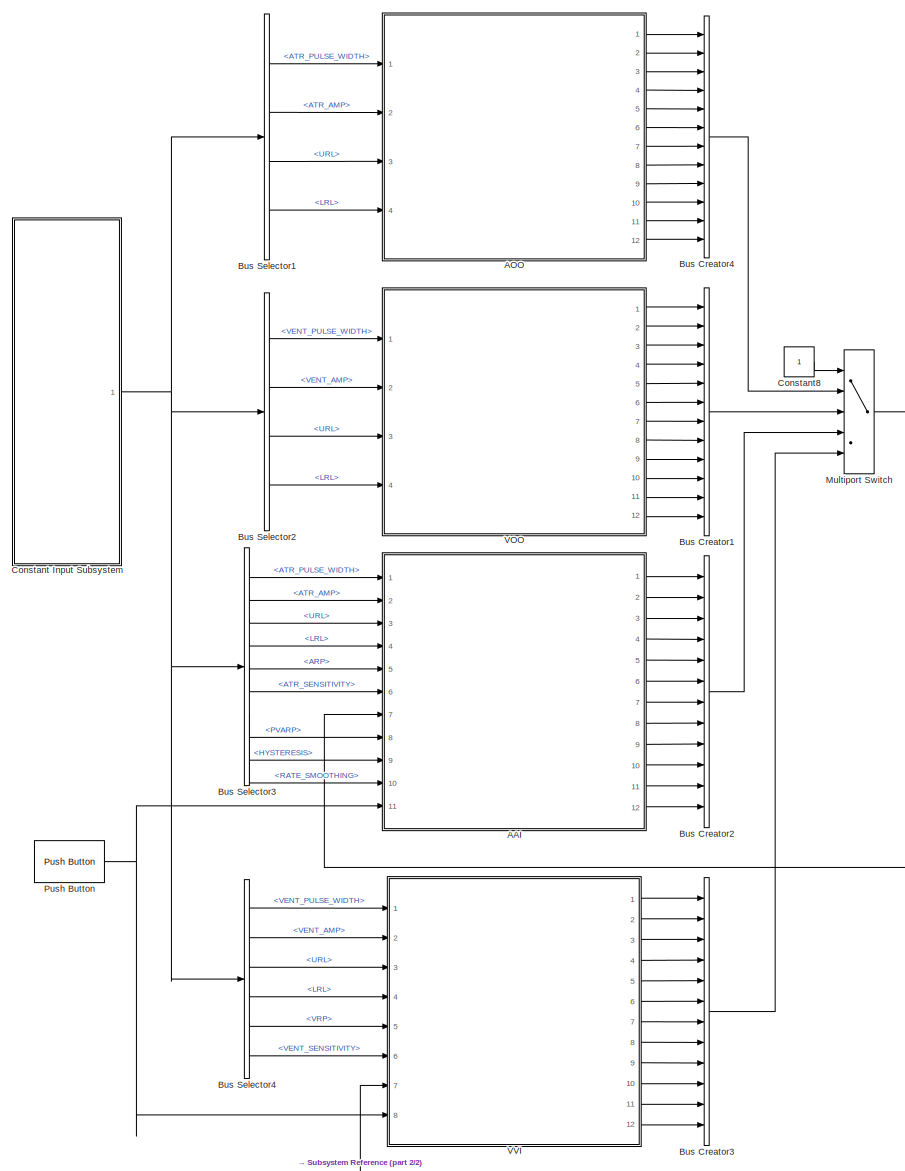
[diagram: root canvas - part 1/2, center side, full height]
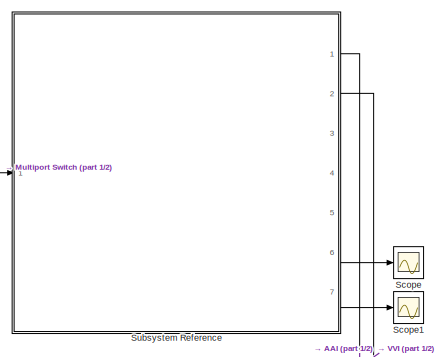
[diagram: root canvas - part 2/2, middle right region]
MODEL slx_96af87fd9442
KIND model
CONFIG AbsTol = auto
CONFIG EnableMultiTasking = on
CONFIG FixedStep = 1e-3
CONFIG MaxStep = auto
CONFIG MinStep = auto
CONFIG RelTol = 1e-3
CONFIG SampleTimeConstraint = Unconstrained
CONFIG Solver = FixedStepAuto
CONFIG SolverName = FixedStepAuto
CONFIG StartTime = 0.0
CONFIG StopTime = 10.0
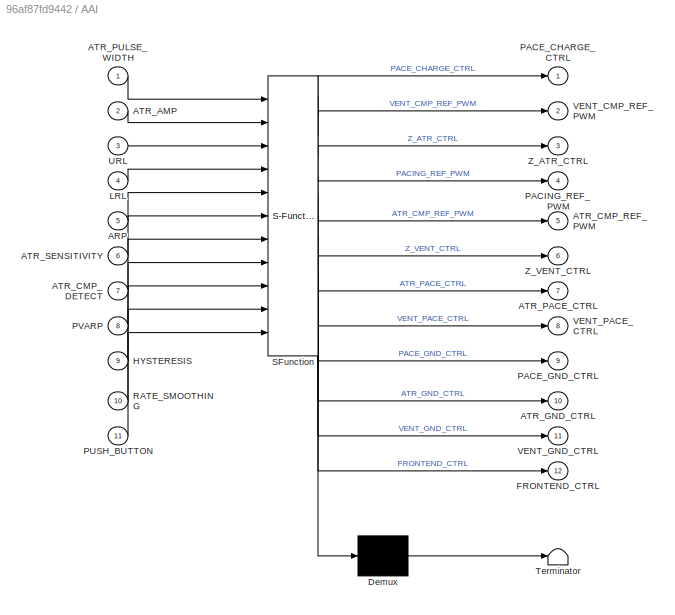
BLOCK [SubSystem] AAI
  Commented = on
  ErrorFcn = Stateflow.Translate.translate
  PermitHierarchicalResolution = ExplicitOnly
  PortSchema = {"entries":[{"content":{"sides":[{"content":{"connectorIds":["In1","In2","In3","In4","In6","In5","In8","In9","In10","In7","In11"]},"type":"ConnectorPlacement.EquallySpacedRectSide","uuid":"15e17ad8-b4d5-4618-94ec-328f447b5375"},{"content":{"connectorIds":["Out1","Out2","Out3","Out4","Out5","Out6","Out7","Out8","Out9","Out10","Out11","Out12"],"side":"RIGHT"},"type":"ConnectorPlacement.EquallySpaced...<+384ch>
  Ports = [11, 12]
  RequestExecContextInheritance = off
  SFBlockType = Chart
  TreatAsAtomicUnit = on
BLOCK [Demux] AAI/ Demux 
  Outputs = 1
  Ports = [1, 1]
BLOCK [S-Function] AAI/ SFunction 
  EnableBusSupport = on
  FunctionName = sf_sfun
  PortCounts = [11 13]
  Ports = [11, 13]
  SFcnIsStateOwnerBlock = off
  SFunctionDeploymentMode = off
  Tag = Stateflow S-Function 2
BLOCK [Terminator] AAI/ Terminator 
BLOCK [Inport] AAI/ARP
  Port = 5
BLOCK [Inport] AAI/ATR_AMP
  Port = 2
BLOCK [Inport] AAI/ATR_CMP_DETECT
  Port = 7
BLOCK [Outport] AAI/ATR_CMP_REF_PWM
  Port = 5
BLOCK [Outport] AAI/ATR_GND_CTRL
  Port = 10
BLOCK [Outport] AAI/ATR_PACE_CTRL
  Port = 7
BLOCK [Inport] AAI/ATR_PULSE_WIDTH
BLOCK [Inport] AAI/ATR_SENSITIVITY
  Port = 6
BLOCK [Outport] AAI/FRONTEND_CTRL
  Port = 12
BLOCK [Inport] AAI/HYSTERESIS
  Port = 9
BLOCK [Inport] AAI/LRL
  Port = 4
BLOCK [Outport] AAI/PACE_CHARGE_CTRL
BLOCK [Outport] AAI/PACE_GND_CTRL
  Port = 9
BLOCK [Outport] AAI/PACING_REF_PWM
  Port = 4
BLOCK [Inport] AAI/PUSH_BUTTON
  Port = 11
BLOCK [Inport] AAI/PVARP
  Port = 8
BLOCK [Inport] AAI/RATE_SMOOTHING
  Port = 10
BLOCK [Inport] AAI/URL
  Port = 3
BLOCK [Outport] AAI/VENT_CMP_REF_PWM
  Port = 2
BLOCK [Outport] AAI/VENT_GND_CTRL
  Port = 11
BLOCK [Outport] AAI/VENT_PACE_CTRL
  Port = 8
BLOCK [Outport] AAI/Z_ATR_CTRL
  Port = 3
BLOCK [Outport] AAI/Z_VENT_CTRL
  Port = 6
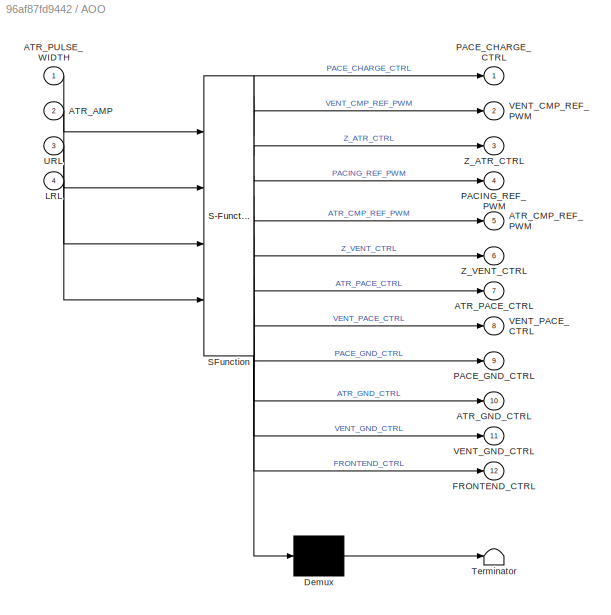
BLOCK [SubSystem] AOO
  ErrorFcn = Stateflow.Translate.translate
  PermitHierarchicalResolution = ExplicitOnly
  Ports = [4, 12]
  RequestExecContextInheritance = off
  SFBlockType = Chart
  TreatAsAtomicUnit = on
BLOCK [Demux] AOO/ Demux 
  Outputs = 1
  Ports = [1, 1]
BLOCK [S-Function] AOO/ SFunction 
  EnableBusSupport = on
  FunctionName = sf_sfun
  PortCounts = [4 13]
  Ports = [4, 13]
  SFcnIsStateOwnerBlock = off
  SFunctionDeploymentMode = off
  Tag = Stateflow S-Function 3
BLOCK [Terminator] AOO/ Terminator 
BLOCK [Inport] AOO/ATR_AMP
  Port = 2
BLOCK [Outport] AOO/ATR_CMP_REF_PWM
  Port = 5
BLOCK [Outport] AOO/ATR_GND_CTRL
  Port = 10
BLOCK [Outport] AOO/ATR_PACE_CTRL
  Port = 7
BLOCK [Inport] AOO/ATR_PULSE_WIDTH
BLOCK [Outport] AOO/FRONTEND_CTRL
  Port = 12
BLOCK [Inport] AOO/LRL
  Port = 4
BLOCK [Outport] AOO/PACE_CHARGE_CTRL
BLOCK [Outport] AOO/PACE_GND_CTRL
  Port = 9
BLOCK [Outport] AOO/PACING_REF_PWM
  Port = 4
BLOCK [Inport] AOO/URL
  Port = 3
BLOCK [Outport] AOO/VENT_CMP_REF_PWM
  Port = 2
BLOCK [Outport] AOO/VENT_GND_CTRL
  Port = 11
BLOCK [Outport] AOO/VENT_PACE_CTRL
  Port = 8
BLOCK [Outport] AOO/Z_ATR_CTRL
  Port = 3
BLOCK [Outport] AOO/Z_VENT_CTRL
  Port = 6
BLOCK [BusCreator] Bus Creator1
  DisplayOption = bar
  InheritFromInputs = on
  Inputs = PACE_CHARGE_CTRL,VENT_CMP_REF_PWM,Z_ATR_CTRL,PACING_REF_PWM,ATR_CMP_REF_PWM,Z_VENT_CTRL,ATR_PACE_CTRL,VENT_PACE_CTRL,PACE_GND_CTRL,ATR_GND_CTRL,VENT_GND_CTRL,FRONTEND_CTRL
  Ports = [12, 1]
BLOCK [BusCreator] Bus Creator2
  DisplayOption = bar
  InheritFromInputs = on
  Inputs = PACE_CHARGE_CTRL,VENT_CMP_REF_PWM,Z_ATR_CTRL,PACING_REF_PWM,ATR_CMP_REF_PWM,Z_VENT_CTRL,ATR_PACE_CTRL,VENT_PACE_CTRL,PACE_GND_CTRL,ATR_GND_CTRL,VENT_GND_CTRL,FRONTEND_CTRL
  Ports = [12, 1]
BLOCK [BusCreator] Bus Creator3
  DisplayOption = bar
  InheritFromInputs = on
  Inputs = PACE_CHARGE_CTRL,VENT_CMP_REF_PWM,Z_ATR_CTRL,PACING_REF_PWM,ATR_CMP_REF_PWM,Z_VENT_CTRL,ATR_PACE_CTRL,VENT_PACE_CTRL,PACE_GND_CTRL,ATR_GND_CTRL,VENT_GND_CTRL,FRONTEND_CTRL
  Ports = [12, 1]
BLOCK [BusCreator] Bus Creator4
  DisplayOption = bar
  InheritFromInputs = on
  Inputs = PACE_CHARGE_CTRL,VENT_CMP_REF_PWM,Z_ATR_CTRL,PACING_REF_PWM,ATR_CMP_REF_PWM,Z_VENT_CTRL,ATR_PACE_CTRL,VENT_PACE_CTRL,PACE_GND_CTRL,ATR_GND_CTRL,VENT_GND_CTRL,FRONTEND_CTRL
  Ports = [12, 1]
BLOCK [BusSelector] Bus Selector1
  OutputSignals = ATR_PULSE_WIDTH,ATR_AMP,URL,LRL
  Ports = [1, 4]
BLOCK [BusSelector] Bus Selector2
  OutputSignals = VENT_PULSE_WIDTH,VENT_AMP,URL,LRL
  Ports = [1, 4]
BLOCK [BusSelector] Bus Selector3
  OutputSignals = ATR_PULSE_WIDTH,ATR_AMP,URL,LRL,ATR_SENSITIVITY,ARP,PVARP,HYSTERESIS,RATE_SMOOTHING
  Ports = [1, 9]
BLOCK [BusSelector] Bus Selector4
  OutputSignals = VENT_PULSE_WIDTH,VENT_AMP,URL,LRL,VRP,VENT_SENSITIVITY
  Ports = [1, 6]
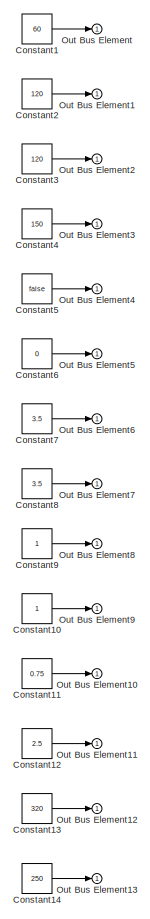
[diagram: Constant Input Subsystem - part 1/2, top left region]
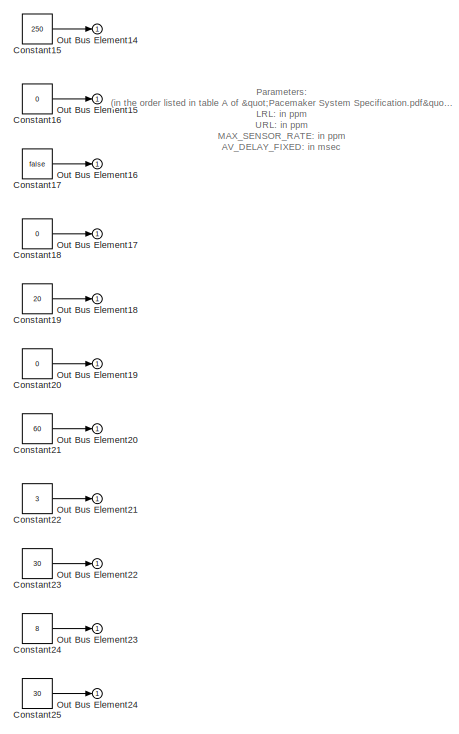
[diagram: Constant Input Subsystem - part 2/2, full width, bottom band]
BLOCK [SubSystem] Constant Input Subsystem
  Ports = [0, 1]
  RequestExecContextInheritance = off
BLOCK [Constant] Constant Input Subsystem/Constant1
  Value = 60
BLOCK [Constant] Constant Input Subsystem/Constant10
BLOCK [Constant] Constant Input Subsystem/Constant11
  Value = 0.75
BLOCK [Constant] Constant Input Subsystem/Constant12
  Value = 2.5
BLOCK [Constant] Constant Input Subsystem/Constant13
  Value = 320
BLOCK [Constant] Constant Input Subsystem/Constant14
  Value = 250
BLOCK [Constant] Constant Input Subsystem/Constant15
  Value = 250
BLOCK [Constant] Constant Input Subsystem/Constant16
  Value = 0
BLOCK [Constant] Constant Input Subsystem/Constant17
  Value = false
BLOCK [Constant] Constant Input Subsystem/Constant18
  Value = 0
BLOCK [Constant] Constant Input Subsystem/Constant19
  Value = 20
BLOCK [Constant] Constant Input Subsystem/Constant2
  Value = 120
BLOCK [Constant] Constant Input Subsystem/Constant20
  Value = 0
BLOCK [Constant] Constant Input Subsystem/Constant21
  Value = 60
BLOCK [Constant] Constant Input Subsystem/Constant22
  Value = 3
BLOCK [Constant] Constant Input Subsystem/Constant23
  Value = 30
BLOCK [Constant] Constant Input Subsystem/Constant24
  Value = 8
BLOCK [Constant] Constant Input Subsystem/Constant25
  Value = 30
BLOCK [Constant] Constant Input Subsystem/Constant3
  Value = 120
BLOCK [Constant] Constant Input Subsystem/Constant4
  Value = 150
BLOCK [Constant] Constant Input Subsystem/Constant5
  Value = false
BLOCK [Constant] Constant Input Subsystem/Constant6
  Value = 0
BLOCK [Constant] Constant Input Subsystem/Constant7
  Value = 3.5
BLOCK [Constant] Constant Input Subsystem/Constant8
  Value = 3.5
BLOCK [Constant] Constant Input Subsystem/Constant9
BLOCK [Outport] Constant Input Subsystem/Out Bus Element
BLOCK [Outport] Constant Input Subsystem/Out Bus Element1
BLOCK [Outport] Constant Input Subsystem/Out Bus Element10
BLOCK [Outport] Constant Input Subsystem/Out Bus Element11
BLOCK [Outport] Constant Input Subsystem/Out Bus Element12
BLOCK [Outport] Constant Input Subsystem/Out Bus Element13
BLOCK [Outport] Constant Input Subsystem/Out Bus Element14
BLOCK [Outport] Constant Input Subsystem/Out Bus Element15
BLOCK [Outport] Constant Input Subsystem/Out Bus Element16
BLOCK [Outport] Constant Input Subsystem/Out Bus Element17
BLOCK [Outport] Constant Input Subsystem/Out Bus Element18
BLOCK [Outport] Constant Input Subsystem/Out Bus Element19
BLOCK [Outport] Constant Input Subsystem/Out Bus Element2
BLOCK [Outport] Constant Input Subsystem/Out Bus Element20
BLOCK [Outport] Constant Input Subsystem/Out Bus Element21
BLOCK [Outport] Constant Input Subsystem/Out Bus Element22
BLOCK [Outport] Constant Input Subsystem/Out Bus Element23
BLOCK [Outport] Constant Input Subsystem/Out Bus Element24
BLOCK [Outport] Constant Input Subsystem/Out Bus Element3
BLOCK [Outport] Constant Input Subsystem/Out Bus Element4
BLOCK [Outport] Constant Input Subsystem/Out Bus Element5
BLOCK [Outport] Constant Input Subsystem/Out Bus Element6
BLOCK [Outport] Constant Input Subsystem/Out Bus Element7
BLOCK [Outport] Constant Input Subsystem/Out Bus Element8
BLOCK [Outport] Constant Input Subsystem/Out Bus Element9
BLOCK [Constant] Constant8
BLOCK [MultiPortSwitch] Multiport Switch
  InputSameDT = off
  Inputs = 4
  Ports = [5, 1]
  SaturateOnIntegerOverflow = off
BLOCK [Reference] Push Button  REF=frdmk64flib/Push Button
  Ports = [0, 1]
  SourceBlock = frdmk64flib/Push Button
  SourceProductBaseCode = EC_FRDM_K64F
  SourceType = freedomk64f.PushButton
BLOCK [Scope] Scope
  Floating = off
  NumInputPorts = 1
  Ports = [1]
  ScopeSpecificationString = Simulink.scopes.TimeScopeBlockCfg('CurrentConfiguration', extmgr.ConfigurationSet(extmgr.Configuration('Core','General UI',true),extmgr.Configuration('Core','Source UI',true),extmgr.Configuration('Sources','WiredSimulink',true),extmgr.Configuration('Visuals','Time Domain',true,'SerializedDisplays',{struct('MinYLimReal','0.4987','MaxYLimReal','0.50059','YLabelReal','','MinYLimMag','0.4987','MaxYLim...<+1335ch>
BLOCK [Scope] Scope1
  Floating = off
  NumInputPorts = 1
  Ports = [1]
  ScopeSpecificationString = Simulink.scopes.TimeScopeBlockCfg('CurrentConfiguration', extmgr.ConfigurationSet(extmgr.Configuration('Core','General UI',true),extmgr.Configuration('Core','Source UI',true),extmgr.Configuration('Sources','WiredSimulink',true,'DataLoggingVariableName','ScopeData1'),extmgr.Configuration('Visuals','Time Domain',true),extmgr.Configuration('Tools','Plot Navigation',true),extmgr.Configuration('Tools',...<+40ch>
BLOCK [SubSystem] Subsystem Reference
  Ports = [1, 7]
  ReferencedSubsystem = k64f_hardware_subsystem
  RequestExecContextInheritance = off
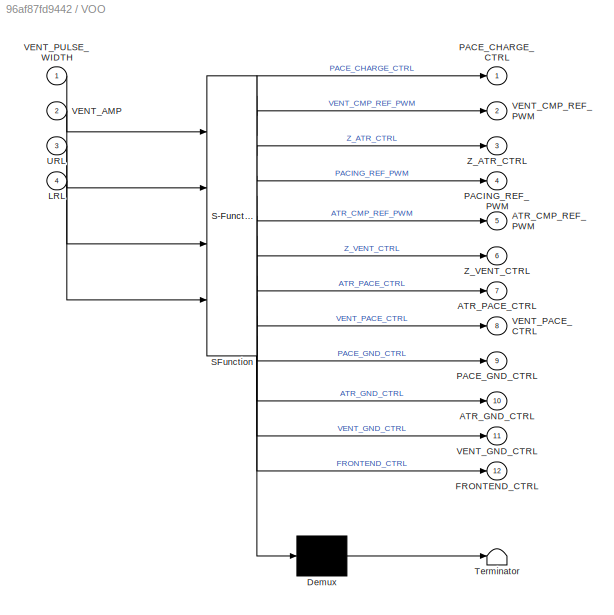
BLOCK [SubSystem] VOO
  Commented = on
  ErrorFcn = Stateflow.Translate.translate
  PermitHierarchicalResolution = ExplicitOnly
  Ports = [4, 12]
  RequestExecContextInheritance = off
  SFBlockType = Chart
  TreatAsAtomicUnit = on
BLOCK [Demux] VOO/ Demux 
  Outputs = 1
  Ports = [1, 1]
BLOCK [S-Function] VOO/ SFunction 
  EnableBusSupport = on
  FunctionName = sf_sfun
  PortCounts = [4 13]
  Ports = [4, 13]
  SFcnIsStateOwnerBlock = off
  SFunctionDeploymentMode = off
  Tag = Stateflow S-Function 5
BLOCK [Terminator] VOO/ Terminator 
BLOCK [Outport] VOO/ATR_CMP_REF_PWM
  Port = 5
BLOCK [Outport] VOO/ATR_GND_CTRL
  Port = 10
BLOCK [Outport] VOO/ATR_PACE_CTRL
  Port = 7
BLOCK [Outport] VOO/FRONTEND_CTRL
  Port = 12
BLOCK [Inport] VOO/LRL
  Port = 4
BLOCK [Outport] VOO/PACE_CHARGE_CTRL
BLOCK [Outport] VOO/PACE_GND_CTRL
  Port = 9
BLOCK [Outport] VOO/PACING_REF_PWM
  Port = 4
BLOCK [Inport] VOO/URL
  Port = 3
BLOCK [Inport] VOO/VENT_AMP
  Port = 2
BLOCK [Outport] VOO/VENT_CMP_REF_PWM
  Port = 2
BLOCK [Outport] VOO/VENT_GND_CTRL
  Port = 11
BLOCK [Outport] VOO/VENT_PACE_CTRL
  Port = 8
BLOCK [Inport] VOO/VENT_PULSE_WIDTH
BLOCK [Outport] VOO/Z_ATR_CTRL
  Port = 3
BLOCK [Outport] VOO/Z_VENT_CTRL
  Port = 6
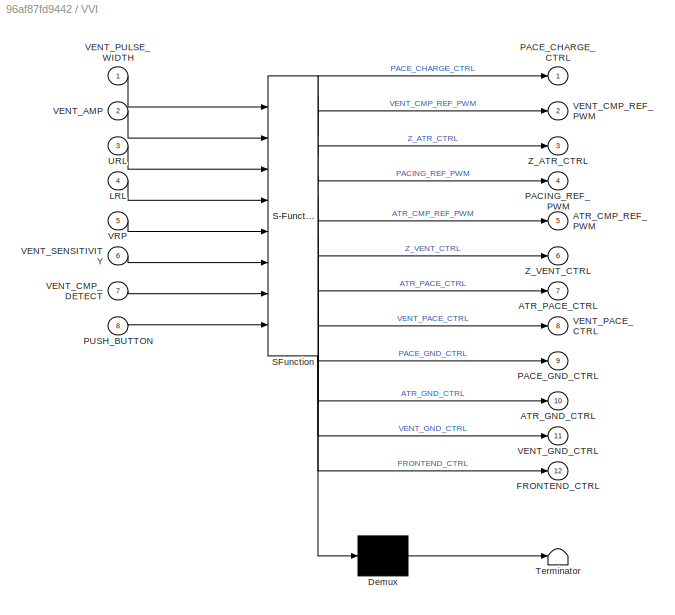
BLOCK [SubSystem] VVI
  Commented = on
  ErrorFcn = Stateflow.Translate.translate
  PermitHierarchicalResolution = ExplicitOnly
  Ports = [8, 12]
  RequestExecContextInheritance = off
  SFBlockType = Chart
  TreatAsAtomicUnit = on
BLOCK [Demux] VVI/ Demux 
  Outputs = 1
  Ports = [1, 1]
BLOCK [S-Function] VVI/ SFunction 
  EnableBusSupport = on
  FunctionName = sf_sfun
  PortCounts = [8 13]
  Ports = [8, 13]
  SFcnIsStateOwnerBlock = off
  SFunctionDeploymentMode = off
  Tag = Stateflow S-Function 1
BLOCK [Terminator] VVI/ Terminator 
BLOCK [Outport] VVI/ATR_CMP_REF_PWM
  Port = 5
BLOCK [Outport] VVI/ATR_GND_CTRL
  Port = 10
BLOCK [Outport] VVI/ATR_PACE_CTRL
  Port = 7
BLOCK [Outport] VVI/FRONTEND_CTRL
  Port = 12
BLOCK [Inport] VVI/LRL
  Port = 4
BLOCK [Outport] VVI/PACE_CHARGE_CTRL
BLOCK [Outport] VVI/PACE_GND_CTRL
  Port = 9
BLOCK [Outport] VVI/PACING_REF_PWM
  Port = 4
BLOCK [Inport] VVI/PUSH_BUTTON
  Port = 8
BLOCK [Inport] VVI/URL
  Port = 3
BLOCK [Inport] VVI/VENT_AMP
  Port = 2
BLOCK [Inport] VVI/VENT_CMP_DETECT
  Port = 7
BLOCK [Outport] VVI/VENT_CMP_REF_PWM
  Port = 2
BLOCK [Outport] VVI/VENT_GND_CTRL
  Port = 11
BLOCK [Outport] VVI/VENT_PACE_CTRL
  Port = 8
BLOCK [Inport] VVI/VENT_PULSE_WIDTH
BLOCK [Inport] VVI/VENT_SENSITIVITY
  Port = 6
BLOCK [Inport] VVI/VRP
  Port = 5
BLOCK [Outport] VVI/Z_ATR_CTRL
  Port = 3
BLOCK [Outport] VVI/Z_VENT_CTRL
  Port = 6
ANNOTATION Constant Input Subsystem: Parameters: (in the order listed in table A of "Pacemaker System Specification.pdf") LRL: in ppm URL: in ppm MAX_SENSOR_RATE: in ppm AV_DELAY_FIXED: in msec AV_DELAY_DYNAMIC: on/off AV_DELAY_OFFSET: in msec ("off" represented by 0) ATR_AMP: in V VENT_AMP: in V ATR_PULSE_WIDTH: in msec (must be greater than 1ms, due to limitation in the hardware) VENT_PULSE_WIDTH: in msec ATR_SENSITIVITY: in mV VEN...<+408ch>
LINE AAI:1 -> Bus Creator2:1
LINE AAI:10 -> Bus Creator2:10
LINE AAI:11 -> Bus Creator2:11
LINE AAI:12 -> Bus Creator2:12
LINE AAI:2 -> Bus Creator2:2
LINE AAI:3 -> Bus Creator2:3
LINE AAI:4 -> Bus Creator2:4
LINE AAI:5 -> Bus Creator2:5
LINE AAI:6 -> Bus Creator2:6
LINE AAI:7 -> Bus Creator2:7
LINE AAI:8 -> Bus Creator2:8
LINE AAI:9 -> Bus Creator2:9
LINE AOO:1 -> Bus Creator4:1
LINE AOO:10 -> Bus Creator4:10
LINE AOO:11 -> Bus Creator4:11
LINE AOO:12 -> Bus Creator4:12
LINE AOO:2 -> Bus Creator4:2
LINE AOO:3 -> Bus Creator4:3
LINE AOO:4 -> Bus Creator4:4
LINE AOO:5 -> Bus Creator4:5
LINE AOO:6 -> Bus Creator4:6
LINE AOO:7 -> Bus Creator4:7
LINE AOO:8 -> Bus Creator4:8
LINE AOO:9 -> Bus Creator4:9
LINE Bus Creator1:1 -> Multiport Switch:3
LINE Bus Creator2:1 -> Multiport Switch:4
LINE Bus Creator3:1 -> Multiport Switch:5
LINE Bus Creator4:1 -> Multiport Switch:2
LINE Bus Selector1:1 -> AOO:1
LINE Bus Selector1:2 -> AOO:2
LINE Bus Selector1:3 -> AOO:3
LINE Bus Selector1:4 -> AOO:4
LINE Bus Selector2:1 -> VOO:1
LINE Bus Selector2:2 -> VOO:2
LINE Bus Selector2:3 -> VOO:3
LINE Bus Selector2:4 -> VOO:4
LINE Bus Selector3:1 -> AAI:1
LINE Bus Selector3:2 -> AAI:2
LINE Bus Selector3:3 -> AAI:3
LINE Bus Selector3:4 -> AAI:4
LINE Bus Selector3:5 -> AAI:6
LINE Bus Selector3:6 -> AAI:5
LINE Bus Selector3:7 -> AAI:8
LINE Bus Selector3:8 -> AAI:9
LINE Bus Selector3:9 -> AAI:10
LINE Bus Selector4:1 -> VVI:1
LINE Bus Selector4:2 -> VVI:2
LINE Bus Selector4:3 -> VVI:3
LINE Bus Selector4:4 -> VVI:4
LINE Bus Selector4:5 -> VVI:5
LINE Bus Selector4:6 -> VVI:6
LINE Constant Input Subsystem/Constant10:1 -> Constant Input Subsystem/Out Bus Element9:1
LINE Constant Input Subsystem/Constant11:1 -> Constant Input Subsystem/Out Bus Element10:1
LINE Constant Input Subsystem/Constant12:1 -> Constant Input Subsystem/Out Bus Element11:1
LINE Constant Input Subsystem/Constant13:1 -> Constant Input Subsystem/Out Bus Element12:1
LINE Constant Input Subsystem/Constant14:1 -> Constant Input Subsystem/Out Bus Element13:1
LINE Constant Input Subsystem/Constant15:1 -> Constant Input Subsystem/Out Bus Element14:1
LINE Constant Input Subsystem/Constant16:1 -> Constant Input Subsystem/Out Bus Element15:1
LINE Constant Input Subsystem/Constant17:1 -> Constant Input Subsystem/Out Bus Element16:1
LINE Constant Input Subsystem/Constant18:1 -> Constant Input Subsystem/Out Bus Element17:1
LINE Constant Input Subsystem/Constant19:1 -> Constant Input Subsystem/Out Bus Element18:1
LINE Constant Input Subsystem/Constant1:1 -> Constant Input Subsystem/Out Bus Element:1
LINE Constant Input Subsystem/Constant20:1 -> Constant Input Subsystem/Out Bus Element19:1
LINE Constant Input Subsystem/Constant21:1 -> Constant Input Subsystem/Out Bus Element20:1
LINE Constant Input Subsystem/Constant22:1 -> Constant Input Subsystem/Out Bus Element21:1
LINE Constant Input Subsystem/Constant23:1 -> Constant Input Subsystem/Out Bus Element22:1
LINE Constant Input Subsystem/Constant24:1 -> Constant Input Subsystem/Out Bus Element23:1
LINE Constant Input Subsystem/Constant25:1 -> Constant Input Subsystem/Out Bus Element24:1
LINE Constant Input Subsystem/Constant2:1 -> Constant Input Subsystem/Out Bus Element1:1
LINE Constant Input Subsystem/Constant3:1 -> Constant Input Subsystem/Out Bus Element2:1
LINE Constant Input Subsystem/Constant4:1 -> Constant Input Subsystem/Out Bus Element3:1
LINE Constant Input Subsystem/Constant5:1 -> Constant Input Subsystem/Out Bus Element4:1
LINE Constant Input Subsystem/Constant6:1 -> Constant Input Subsystem/Out Bus Element5:1
LINE Constant Input Subsystem/Constant7:1 -> Constant Input Subsystem/Out Bus Element6:1
LINE Constant Input Subsystem/Constant8:1 -> Constant Input Subsystem/Out Bus Element7:1
LINE Constant Input Subsystem/Constant9:1 -> Constant Input Subsystem/Out Bus Element8:1
NET Constant Input Subsystem:1 -> Bus Selector1:1, Bus Selector2:1, Bus Selector3:1, Bus Selector4:1
LINE Constant8:1 -> Multiport Switch:1
LINE Multiport Switch:1 -> Subsystem Reference:1
NET Push Button:1 -> AAI:11, VVI:8
LINE Subsystem Reference:1 -> AAI:7
LINE Subsystem Reference:2 -> VVI:7
LINE Subsystem Reference:6 -> Scope:1
LINE Subsystem Reference:7 -> Scope1:1
LINE VOO:1 -> Bus Creator1:1
LINE VOO:10 -> Bus Creator1:10
LINE VOO:11 -> Bus Creator1:11
LINE VOO:12 -> Bus Creator1:12
LINE VOO:2 -> Bus Creator1:2
LINE VOO:3 -> Bus Creator1:3
LINE VOO:4 -> Bus Creator1:4
LINE VOO:5 -> Bus Creator1:5
LINE VOO:6 -> Bus Creator1:6
LINE VOO:7 -> Bus Creator1:7
LINE VOO:8 -> Bus Creator1:8
LINE VOO:9 -> Bus Creator1:9
LINE VVI:1 -> Bus Creator3:1
LINE VVI:10 -> Bus Creator3:10
LINE VVI:11 -> Bus Creator3:11
LINE VVI:12 -> Bus Creator3:12
LINE VVI:2 -> Bus Creator3:2
LINE VVI:3 -> Bus Creator3:3
LINE VVI:4 -> Bus Creator3:4
LINE VVI:5 -> Bus Creator3:5
LINE VVI:6 -> Bus Creator3:6
LINE VVI:7 -> Bus Creator3:7
LINE VVI:8 -> Bus Creator3:8
LINE VVI:9 -> Bus Creator3:9
note: NET lines group one-source signal fan-out (src -> all destinations, sorted); 1:1 wires keep LINE
CHART AOO states=4 transitions=4
  STATE_LABEL '<!DOCTYPE HTML PUBLIC "-//W3C//DTD HTML 4.0//EN" "http://www.w3.org/TR/REC-html40/strict.dtd">\n<html><head><meta name="qrichtext" content="1" /><style type="text/css">\np, li { white-space: pre-wrap; }\n</style></head><body align="left" style=" font-family:\'Helvetica\'; font-size:12px; font-weight:400; font-style:normal;">\n<p align="left" style=" margin-top:0px; margin-bottom:0px; margin-left:0px; ma...<+916ch>'
  STATE_LABEL 'Init\nentry:\nVENT_CMP_REF_PWM=100;\nATR_CMP_REF_PWM=100;\nFRONTEND_CTRL=false;'
  STATE_LABEL 'Charging\n%% Charge C22\nentry:\n  ATR_PACE_CTRL = false;\n  VENT_PACE_CTRL = false;\n  PACING_REF_PWM = ATR_AMP*20;\n  %PACING_REF_PWM = ATR_AMP/5*100;\n  PACE_CHARGE_CTRL = true;\n  %% Discharge C21\n  PACE_GND_CTRL = true;\n  Z_ATR_CTRL = false;\n  Z_VENT_CTRL = false;\n  ATR_GND_CTRL = true;\n  VENT_GND_CTRL = false;\n'
  STATE_LABEL 'Pacing\nentry:\n  PACE_CHARGE_CTRL = false;\n  PACE_GND_CTRL = true;\n  ATR_PACE_CTRL = true;\n  ATR_GND_CTRL = false;\n  Z_ATR_CTRL = false;\n  Z_VENT_CTRL =false;\n  VENT_GND_CTRL = false;\n  VENT_PACE_CTRL = false;\n'
CHART VOO states=4 transitions=4
  STATE_LABEL '<!DOCTYPE HTML PUBLIC "-//W3C//DTD HTML 4.0//EN" "http://www.w3.org/TR/REC-html40/strict.dtd">\n<html><head><meta name="qrichtext" content="1" /><style type="text/css">\np, li { white-space: pre-wrap; }\n</style></head><body align="left" style=" font-family:\'Helvetica\'; font-size:12px; font-weight:400; font-style:normal;">\n<p align="left" style=" margin-top:0px; margin-bottom:0px; margin-left:0px; ma...<+734ch>'
  STATE_LABEL 'Init\nentry:\nVENT_CMP_REF_PWM=100;\nATR_CMP_REF_PWM=100;\nFRONTEND_CTRL=false;'
  STATE_LABEL 'Charging\nentry:\n%% Charge C22\nATR_PACE_CTRL = false;\nVENT_PACE_CTRL = false;\nPACING_REF_PWM = VENT_AMP*20;\n%PACING_REF_PWM = VENT_AMP/5*100;\nPACE_CHARGE_CTRL = true;\n%% Discharge C21\nPACE_GND_CTRL = true;\nZ_ATR_CTRL = false;\nZ_VENT_CTRL = false;\nATR_GND_CTRL = false;\nVENT_GND_CTRL = true;\n'
  STATE_LABEL 'Pacing\nentry:\n  PACE_CHARGE_CTRL = false;\n  PACE_GND_CTRL = true;\n  ATR_PACE_CTRL = false;\n  ATR_GND_CTRL = false;\n  Z_ATR_CTRL = false;\n  Z_VENT_CTRL = false;\n  VENT_GND_CTRL = false;\n  VENT_PACE_CTRL = true;\n'
CHART VVI states=5 transitions=6
  STATE_LABEL 'REF_delay'
  STATE_LABEL '<!DOCTYPE HTML PUBLIC "-//W3C//DTD HTML 4.0//EN" "http://www.w3.org/TR/REC-html40/strict.dtd">\n<html><head><meta name="qrichtext" content="1" /><style type="text/css">\np, li { white-space: pre-wrap; }\n</style></head><body align="left" style=" font-family:\'Helvetica\'; font-size:12px; font-weight:400; font-style:normal;">\n<p align="left" style=" margin-top:0px; margin-bottom:0px; margin-left:0px; ma...<+1397ch>'
  STATE_LABEL 'Init\nentry:\n  FRONTEND_CTRL = true;\n  ATR_CMP_REF_PWM=100;\n  VENT_CMP_REF_PWM =(51+VENT_SENSITIVITY)*1080/941;\n  % see explanation for ...REF_PWM in section 2.3.4 of the Document'
  STATE_LABEL 'Charging\nentry:\n%% Charge C22\nATR_PACE_CTRL = false;\nVENT_PACE_CTRL = false;\nPACING_REF_PWM = VENT_AMP*20;\n%PACING_REF_PWM = VENT_AMP/5*100;\nPACE_CHARGE_CTRL = true;\n%% Discharge C21\nPACE_GND_CTRL = true;\nZ_ATR_CTRL = false;\nZ_VENT_CTRL = false;\nATR_GND_CTRL = false;\nVENT_GND_CTRL = true;\n'
  STATE_LABEL 'Pacing\nentry:\n  PACE_CHARGE_CTRL = false;\n  PACE_GND_CTRL = true;\n  ATR_PACE_CTRL = false;\n  ATR_GND_CTRL = false;\n  Z_ATR_CTRL = false;\n  Z_VENT_CTRL = false;\n  VENT_GND_CTRL = false;\n  VENT_PACE_CTRL = true;\n'
CHART AAI states=5 transitions=6
  STATE_LABEL 'REF_delay'
  STATE_LABEL '<!DOCTYPE HTML PUBLIC "-//W3C//DTD HTML 4.0//EN" "http://www.w3.org/TR/REC-html40/strict.dtd">\n<html><head><meta name="qrichtext" content="1" /><style type="text/css">\np, li { white-space: pre-wrap; }\n</style></head><body align="left" style=" font-family:\'Helvetica\'; font-size:12px; font-weight:400; font-style:normal;">\n<p align="left" style=" margin-top:0px; margin-bottom:0px; margin-left:0px; ma...<+1391ch>'
  STATE_LABEL 'Charge\nentry:\n%% Charge C22\nATR_PACE_CTRL = false;\nVENT_PACE_CTRL = false;\nPACING_REF_PWM = ATR_AMP*20;\n%PACING_REF_PWM = ATR_AMP/5*100;\nPACE_CHARGE_CTRL = true;\n%% Discharge C21\nPACE_GND_CTRL = true;\nZ_ATR_CTRL = false;\nZ_VENT_CTRL = false;\nATR_GND_CTRL = true;\nVENT_GND_CTRL = false;'
  STATE_LABEL 'Pacing\nentry:\n  PACE_CHARGE_CTRL = false;\n  PACE_GND_CTRL = true;\n  ATR_PACE_CTRL = true;\n  ATR_GND_CTRL = false;\n  Z_ATR_CTRL = false;\n  Z_VENT_CTRL = false;\n  VENT_GND_CTRL = false;\n  VENT_PACE_CTRL = false;\n'
  STATE_LABEL 'Sensing\nentry:\n  FRONTEND_CTRL = true;\n  VENT_CMP_REF_PWM=100;\n  ATR_CMP_REF_PWM = (58+ATR_SENSITIVITY)/0.82625;\n  % see explanation for ...REF_PWM in section 2.3.4 of the Document'
CHART  states=0 transitions=0
CHART  states=0 transitions=0
CHART  states=0 transitions=0
CHART  states=0 transitions=0
